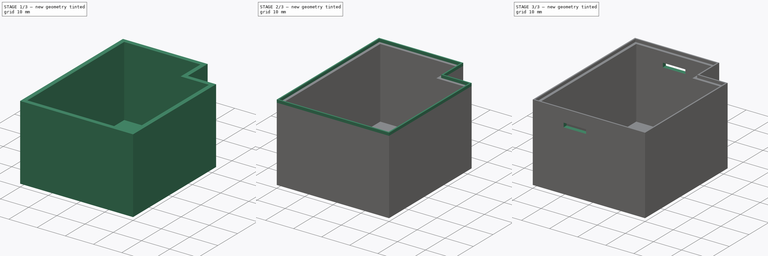
[diagram: build sequence overview — one tinted view per stage of 3, left to right]
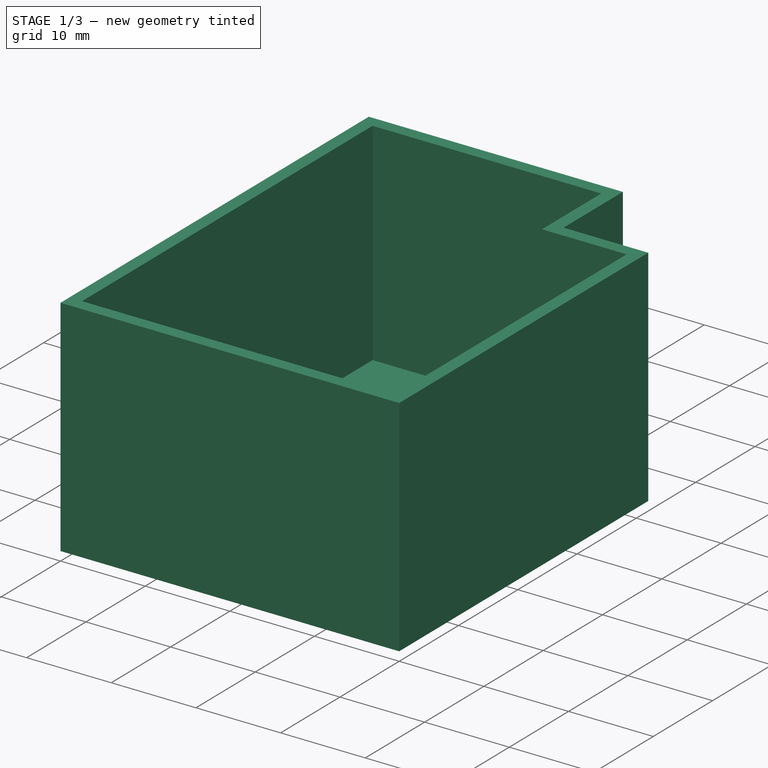
[diagram: stage 1 of 3 — iso view after this stage's code; geometry added in this stage tinted green]
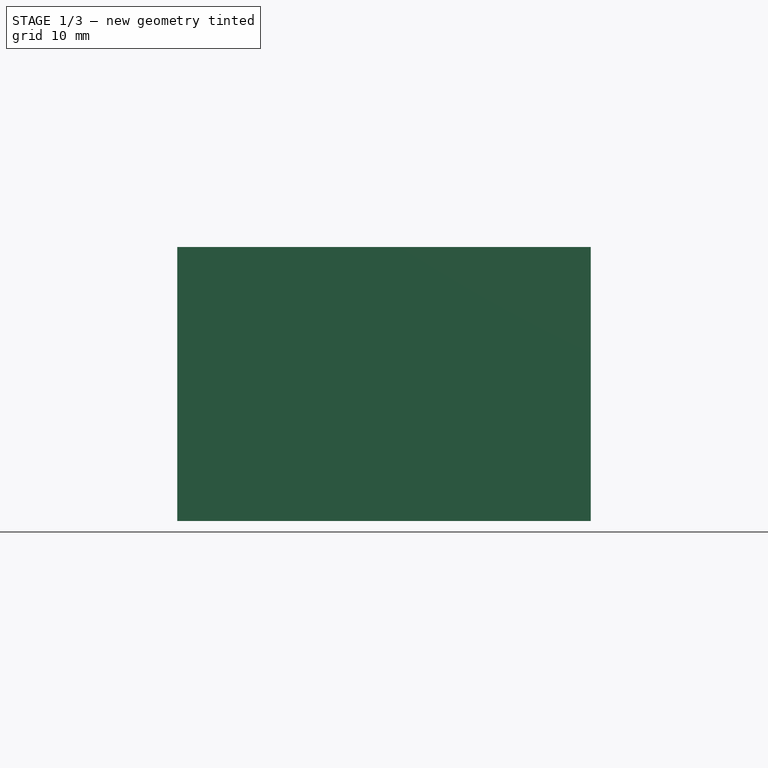
[diagram: stage 1 of 3 — front view after this stage's code; geometry added in this stage tinted green]
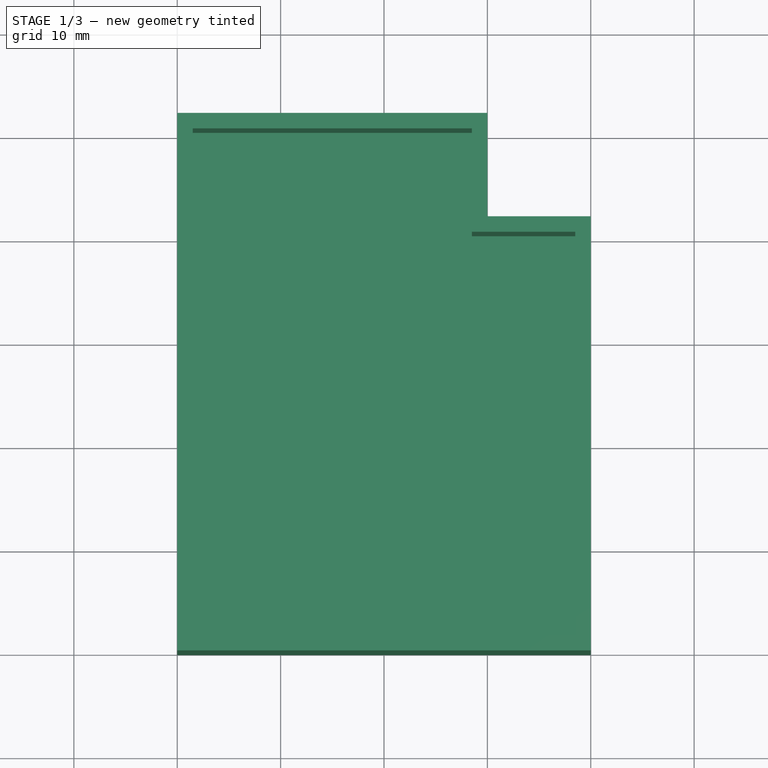
[diagram: stage 1 of 3 — top view after this stage's code; geometry added in this stage tinted green]
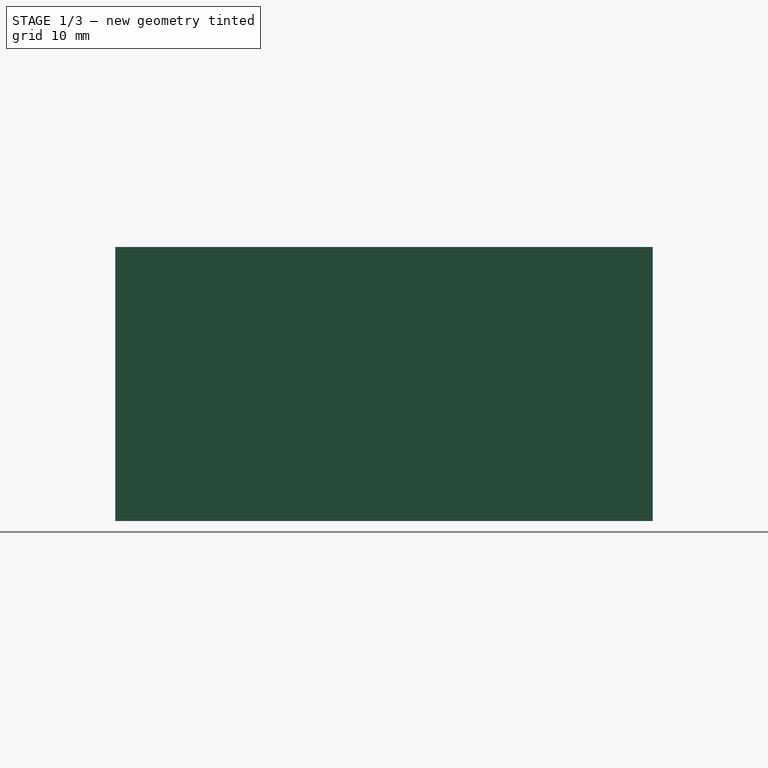
[diagram: stage 1 of 3 — right view after this stage's code; geometry added in this stage tinted green]
FCSTD DOCUMENT  (FreeCAD 0.19R24366 (Git))
Label: rad_dk_fixture_lid
License: All rights reserved
LicenseURL: http://en.wikipedia.org/wiki/All_rights_reserved
objects: Sketcher::SketchObject×4, PartDesign::Pad×4, PartDesign::Pocket×1, Part::Part2DObjectPython×1, PartDesign::Body×1, App::Part×1
note: 16 computed .brp shape members not serialized (recipe doc carries the construction recipe); baked Part::Feature solids carry a one-line shape summary decoded from their .brp

FEATURE [Sketcher::SketchObject] Sketch
  FullyConstrained = true
  MapMode = 5
  Support = -> [XY_Plane001]
  sketch-geometry (6):
    g0: LineSegment StartX=0 StartY=0 StartZ=0 EndX=0 EndY=52 EndZ=0
    g1: LineSegment StartX=40 StartY=0 StartZ=0 EndX=0 EndY=0 EndZ=0
    g2: LineSegment StartX=40 StartY=0 StartZ=0 EndX=40 EndY=42 EndZ=0
    g3: LineSegment StartX=40 StartY=42 StartZ=0 EndX=30 EndY=42 EndZ=0
    g4: LineSegment StartX=30 StartY=42 StartZ=0 EndX=30 EndY=52 EndZ=0
    g5: LineSegment StartX=30 StartY=52 StartZ=0 EndX=0 EndY=52 EndZ=0
  constraints (17):
    c: Vertical(g0)
    c: Coincident(g1,g0)
    c: Horizontal(g1)
    c: Coincident(g0,g-1)
    c: Vertical(g2)
    c: Coincident(g2,g1)
    c: Coincident(g3,g2)
    c: Horizontal(g3)
    c: Coincident(g4,g3)
    c: Vertical(g4)
    c: Coincident(g5,g4)
    c: Coincident(g5,g0)
    c: Horizontal(g5)
    c: DistanceY(g4,g4) = 10
    c: DistanceX(g3,g3) = 10
    c: DistanceY(g0,g0) = 52
    c: DistanceX(g1,g1) = 40
FEATURE [PartDesign::Pad] Pad
  Direction = (1,1,1)
  Length = 1.5
  Length2 = 100
  Profile = -> Sketch
  Type = 0
FEATURE [Sketcher::SketchObject] Sketch001
  ExternalGeometry = -> [Pad]
  FullyConstrained = true
  MapMode = 5
  Placement = pos=(0,0,1.5) rot=(0,0,1;0rad)
  Support = -> [Pad]
  sketch-geometry (12):
    g0: LineSegment StartX=0 StartY=52 StartZ=0 EndX=30 EndY=52 EndZ=0
    g1: LineSegment StartX=30 StartY=52 StartZ=0 EndX=30 EndY=42 EndZ=0
    g2: LineSegment StartX=30 StartY=42 StartZ=0 EndX=40 EndY=42 EndZ=0
    g3: LineSegment StartX=40 StartY=42 StartZ=0 EndX=40 EndY=0 EndZ=0
    g4: LineSegment StartX=40 StartY=0 StartZ=0 EndX=0 EndY=0 EndZ=0
    g5: LineSegment StartX=0 StartY=0 StartZ=0 EndX=0 EndY=52 EndZ=0
    g6: LineSegment StartX=1.5 StartY=50.5 StartZ=0 EndX=28.5 EndY=50.5 EndZ=0
    g7: LineSegment StartX=28.5 StartY=50.5 StartZ=0 EndX=28.5 EndY=40.5 EndZ=0
    g8: LineSegment StartX=28.5 StartY=40.5 StartZ=0 EndX=38.5 EndY=40.5 EndZ=0
    g9: LineSegment StartX=38.5 StartY=40.5 StartZ=0 EndX=38.5 EndY=1.5 EndZ=0
    g10: LineSegment StartX=38.5 StartY=1.5 StartZ=0 EndX=1.5 EndY=1.5 EndZ=0
    g11: LineSegment StartX=1.5 StartY=1.5 StartZ=0 EndX=1.5 EndY=50.5 EndZ=0
  constraints (32):
    c: Horizontal(g0)
    c: Coincident(g1,g0)
    c: Vertical(g1)
    c: Coincident(g2,g1)
    c: Horizontal(g2)
    c: Coincident(g3,g2)
    c: Coincident(g4,g3)
    c: Coincident(g5,g4)
    c: Coincident(g5,g0)
    c: Vertical(g5)
    c: Horizontal(g6)
    c: Coincident(g7,g6)
    c: Coincident(g8,g7)
    c: Horizontal(g8)
    c: Vertical(g7)
    c: Coincident(g9,g8)
    c: Vertical(g9)
    c: Coincident(g10,g9)
    c: Horizontal(g10)
    c: Coincident(g11,g10)
    c: Coincident(g11,g6)
    c: Vertical(g11)
    c: Distance(g6,g0) = 1.5
    c: Distance(g6,g5) = 1.5
    c: Distance(g6,g1) = 1.5
    c: Distance(g7,g2) = 1.5
    c: Distance(g8,g3) = 1.5
    c: Distance(g9,g4) = 1.5
    c: Coincident(g4,g-1)
    c: Coincident(g3,g-6)
    c: Coincident(g2,g-7)
    c: Coincident(g0,g-8)
FEATURE [PartDesign::Pad] Pad001
  BaseFeature = -> Pad
  Direction = (1,1,1)
  Length = 25
  Length2 = 100
  Profile = -> Sketch001
  Type = 0
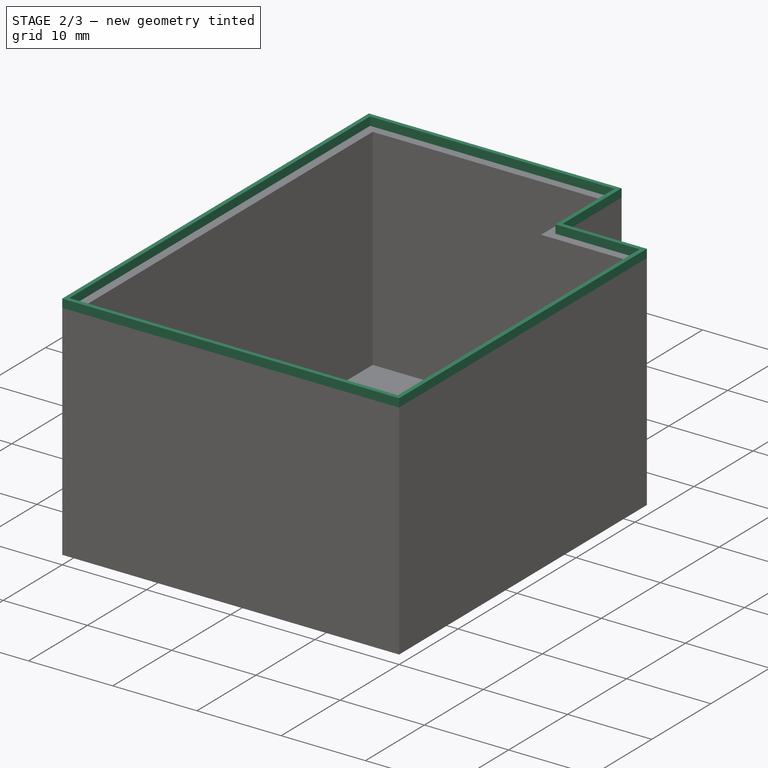
[diagram: stage 2 of 3 — iso view after this stage's code; geometry added in this stage tinted green]
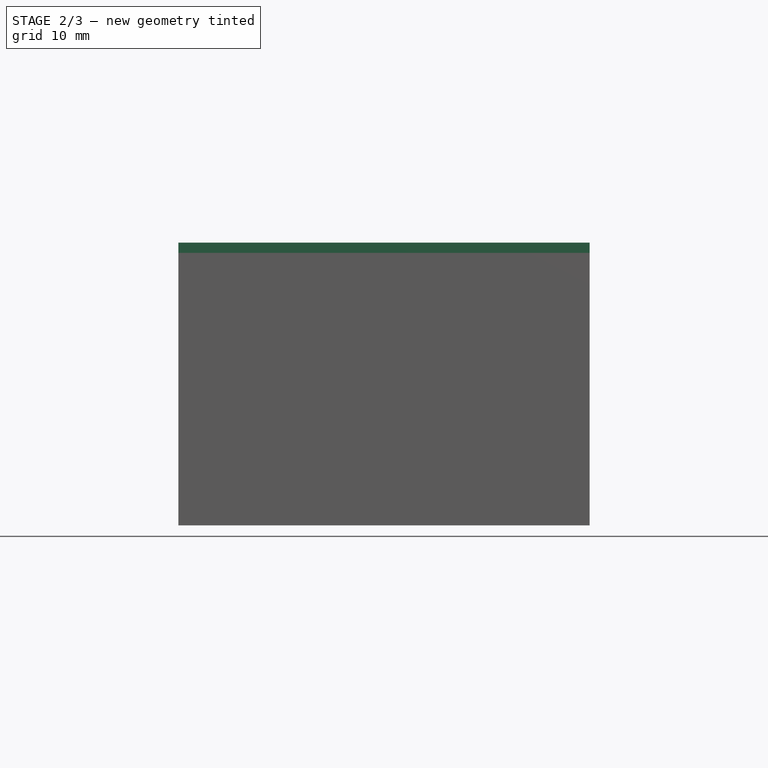
[diagram: stage 2 of 3 — front view after this stage's code; geometry added in this stage tinted green]
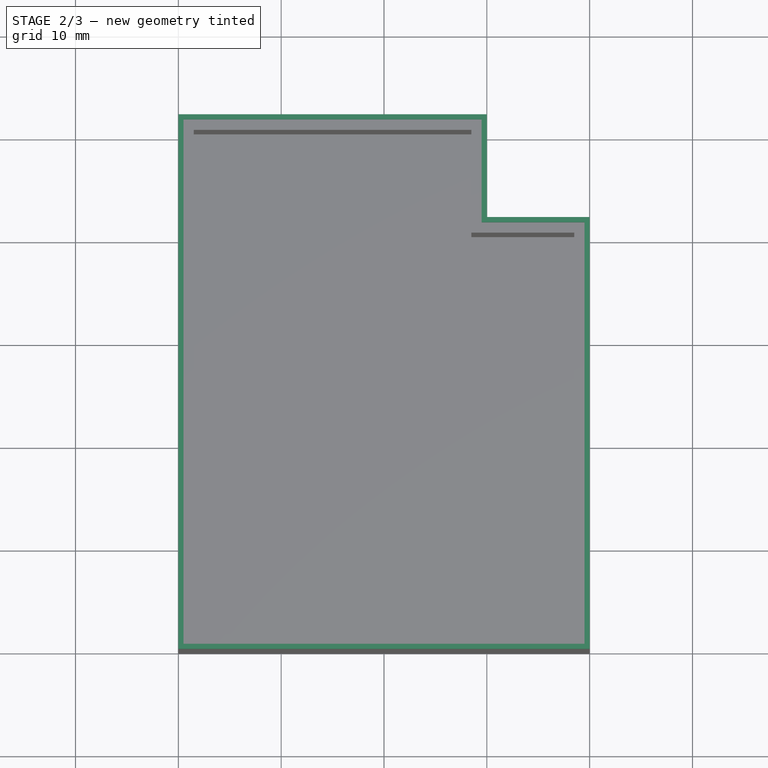
[diagram: stage 2 of 3 — top view after this stage's code; geometry added in this stage tinted green]
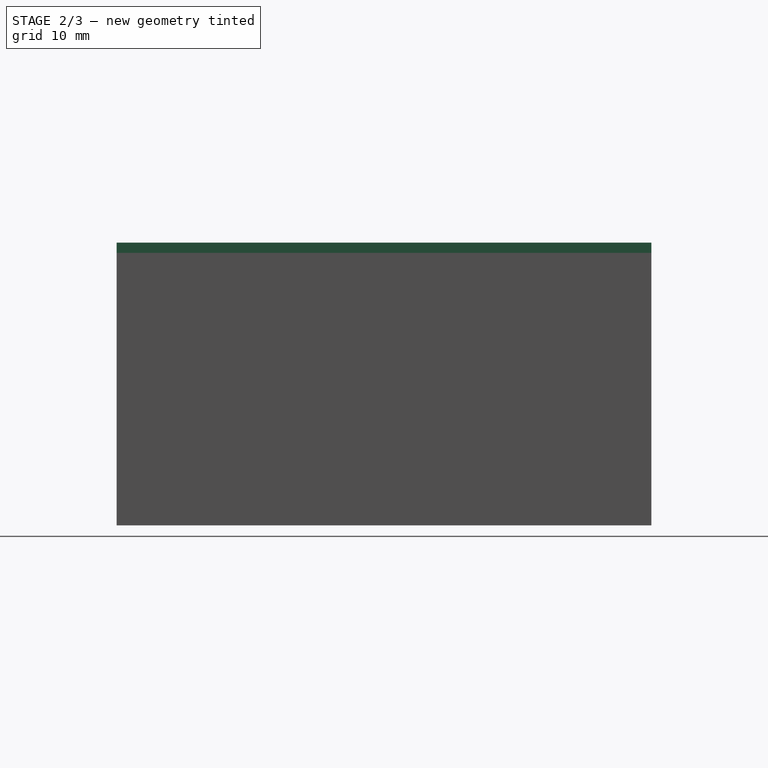
[diagram: stage 2 of 3 — right view after this stage's code; geometry added in this stage tinted green]
FEATURE [Sketcher::SketchObject] Sketch002
  ExternalGeometry = -> [Pad001]
  FullyConstrained = true
  MapMode = 5
  Placement = pos=(0,0,26.5) rot=(0,0,1;0rad)
  Support = -> [Pad001]
  sketch-geometry (12):
    g0: LineSegment StartX=0 StartY=52 StartZ=0 EndX=30 EndY=52 EndZ=0
    g1: LineSegment StartX=30 StartY=52 StartZ=0 EndX=30 EndY=42 EndZ=0
    g2: LineSegment StartX=30 StartY=42 StartZ=0 EndX=40 EndY=42 EndZ=0
    g3: LineSegment StartX=40 StartY=42 StartZ=0 EndX=40 EndY=0 EndZ=0
    g4: LineSegment StartX=40 StartY=0 StartZ=0 EndX=0 EndY=0 EndZ=0
    g5: LineSegment StartX=0 StartY=0 StartZ=0 EndX=0 EndY=52 EndZ=0
    g6: LineSegment StartX=0.5 StartY=51.5 StartZ=0 EndX=29.5 EndY=51.5 EndZ=0
    g7: LineSegment StartX=29.5 StartY=51.5 StartZ=0 EndX=29.5 EndY=41.5 EndZ=0
    g8: LineSegment StartX=29.5 StartY=41.5 StartZ=0 EndX=39.5 EndY=41.5 EndZ=0
    g9: LineSegment StartX=39.5 StartY=41.5 StartZ=0 EndX=39.5 EndY=0.5 EndZ=0
    g10: LineSegment StartX=39.5 StartY=0.5 StartZ=0 EndX=0.5 EndY=0.5 EndZ=0
    g11: LineSegment StartX=0.5 StartY=0.5 StartZ=0 EndX=0.5 EndY=51.5 EndZ=0
  constraints (32):
    c: Horizontal(g0)
    c: Coincident(g1,g0)
    c: Vertical(g1)
    c: Horizontal(g2)
    c: Coincident(g3,g2)
    c: Coincident(g4,g3)
    c: Coincident(g5,g4)
    c: Coincident(g5,g0)
    c: Vertical(g5)
    c: Horizontal(g6)
    c: Coincident(g7,g6)
    c: Vertical(g7)
    c: Coincident(g8,g7)
    c: Horizontal(g8)
    c: Coincident(g9,g8)
    c: Vertical(g9)
    c: Coincident(g10,g9)
    c: Horizontal(g10)
    c: Coincident(g11,g10)
    c: Coincident(g11,g6)
    c: Vertical(g11)
    c: Distance(g6,g0) = 0.5
    c: Distance(g6,g5) = 0.5
    c: Distance(g6,g1) = 0.5
    c: Coincident(g2,g1)
    c: Distance(g7,g2) = 0.5
    c: Distance(g8,g3) = 0.5
    c: Distance(g9,g4) = 0.5
    c: Coincident(g4,g-1)
    c: Coincident(g3,g-7)
    c: Coincident(g2,g-6)
    c: Coincident(g-4,g0)
FEATURE [PartDesign::Pad] Pad002
  BaseFeature = -> Pad001
  Direction = (1,1,1)
  Length = 1
  Length2 = 100
  Profile = -> Sketch002
  Type = 0
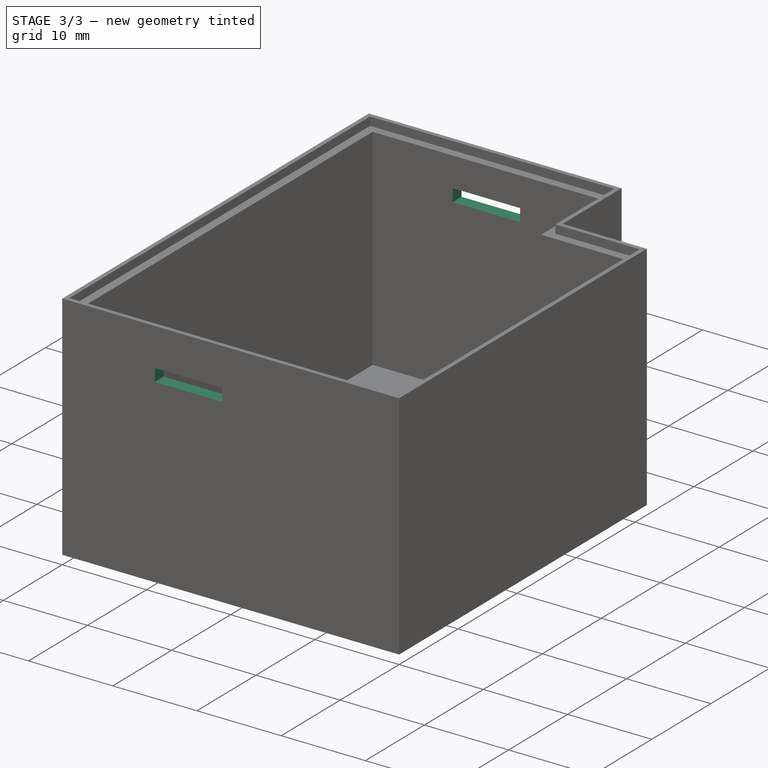
[diagram: stage 3 of 3 — iso view after this stage's code; geometry added in this stage tinted green]
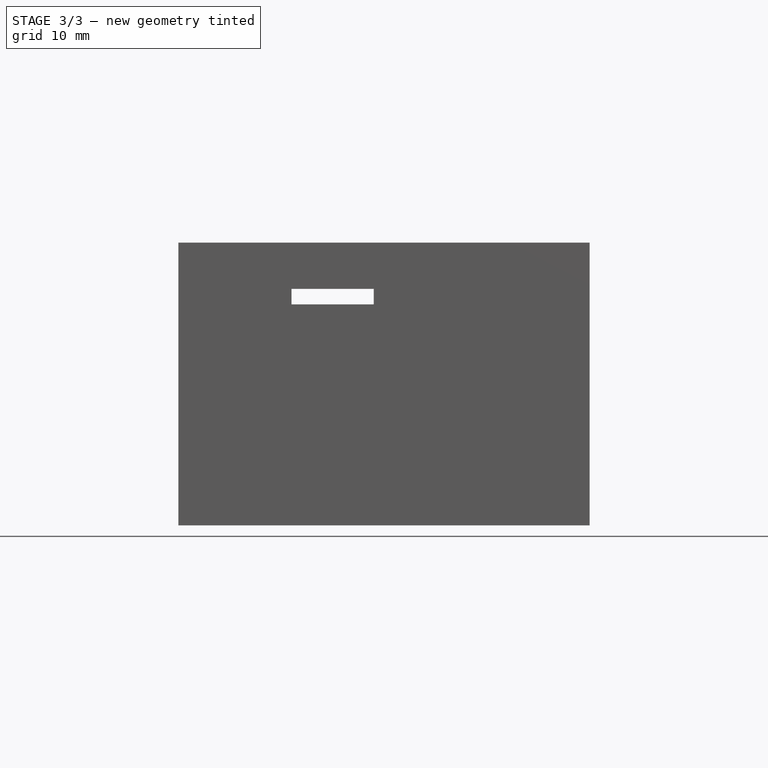
[diagram: stage 3 of 3 — front view after this stage's code; geometry added in this stage tinted green]
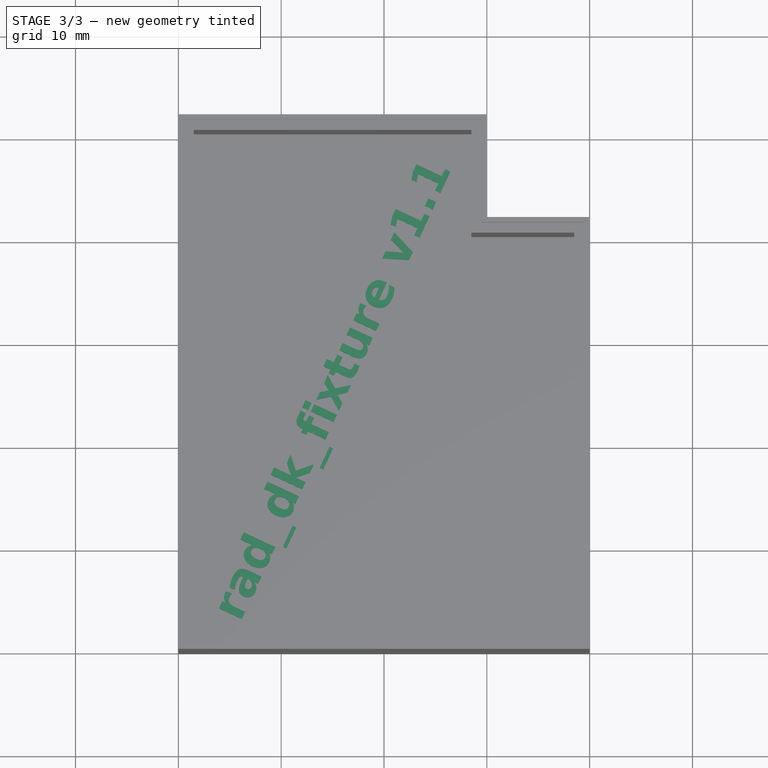
[diagram: stage 3 of 3 — top view after this stage's code; geometry added in this stage tinted green]
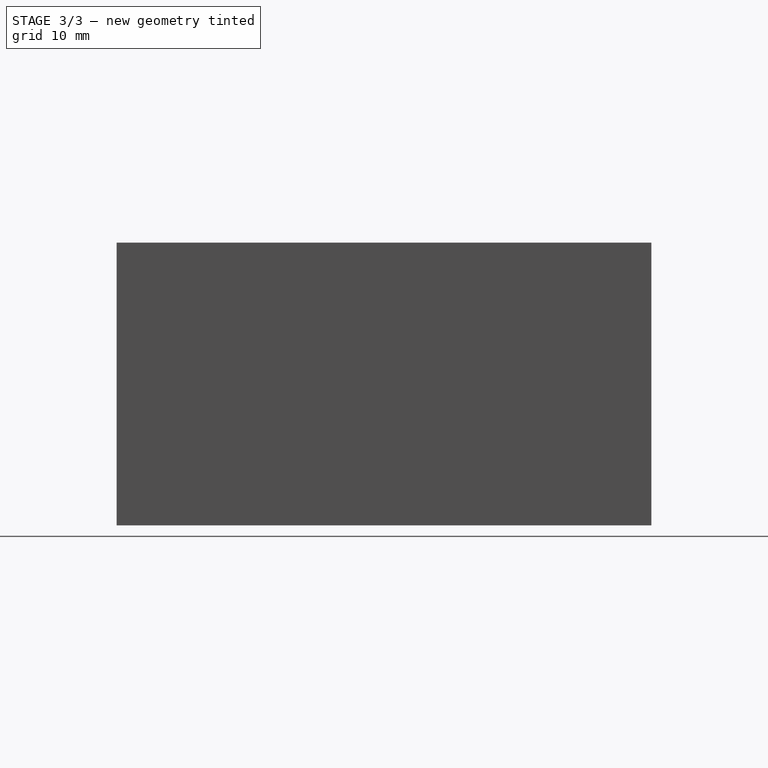
[diagram: stage 3 of 3 — right view after this stage's code; geometry added in this stage tinted green]
FEATURE [Sketcher::SketchObject] Sketch003
  ExternalGeometry = -> [Pad002]
  FullyConstrained = true
  MapMode = 5
  Placement = pos=(0,52,0) rot=(0,0.707107,0.707107;3.14159rad)
  Support = -> [Pad002]
  sketch-geometry (4):
    g0: LineSegment StartX=-19 StartY=23 StartZ=0 EndX=-11 EndY=23 EndZ=0
    g1: LineSegment StartX=-11 StartY=23 StartZ=0 EndX=-11 EndY=21.5 EndZ=0
    g2: LineSegment StartX=-11 StartY=21.5 StartZ=0 EndX=-19 EndY=21.5 EndZ=0
    g3: LineSegment StartX=-19 StartY=21.5 StartZ=0 EndX=-19 EndY=23 EndZ=0
  constraints (12):
    c: Coincident(g0,g1)
    c: Coincident(g1,g2)
    c: Coincident(g2,g3)
    c: Coincident(g3,g0)
    c: Horizontal(g0)
    c: Horizontal(g2)
    c: Vertical(g1)
    c: Vertical(g3)
    c: DistanceX(g-2,g1) = -11
    c: DistanceY(g1,g1) = 1.5
    c: Distance(g2,g-3) = 6
    c: DistanceX(g2,g2) = 8
FEATURE [PartDesign::Pocket] Pocket
  BaseFeature = -> Pad002
  Length = 5
  Length2 = 100
  Profile = -> Sketch003
  Type = 1
FEATURE [Part::Part2DObjectPython] ShapeString  # Draft 2D object (typed FeaturePython)
  AttachmentOffset = pos=(6,3,0) rot=(0,0,1;1.13446rad)
  FontFile = <path>
  MapMode = 5
  Placement = pos=(6,3,1.5) rot=(0,0,1;1.13446rad)
  Size = 3.5
  String = rad_dk_fixture v1.1
  Support = -> [Pocket]
  Tracking = 0
FEATURE [PartDesign::Pad] Pad003
  BaseFeature = -> Pocket
  Direction = (1,1,1)
  Length = 0.5
  Length2 = 100
  Profile = -> ShapeString
  Type = 0
FEATURE [PartDesign::Body] Body
  Group = -> [Sketch,Pad,Sketch001,Pad001,Sketch002,Pad002,Sketch003,Pocket,ShapeString,Pad003]
  Origin = -> Origin001
  Tip = -> Pad003
FEATURE [App::Part] Part
  Group = -> [Body]
  Origin = -> Origin
note: 1 file-system path scrubbed to <path> (originals preserved in the JSON sidecar)
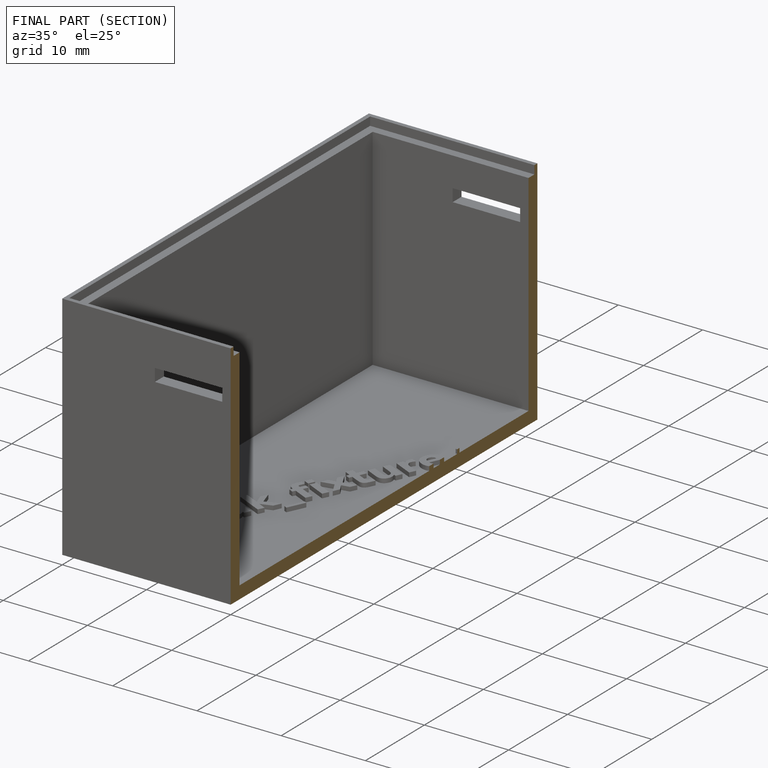
[diagram: finished part — half-section view (interior)]
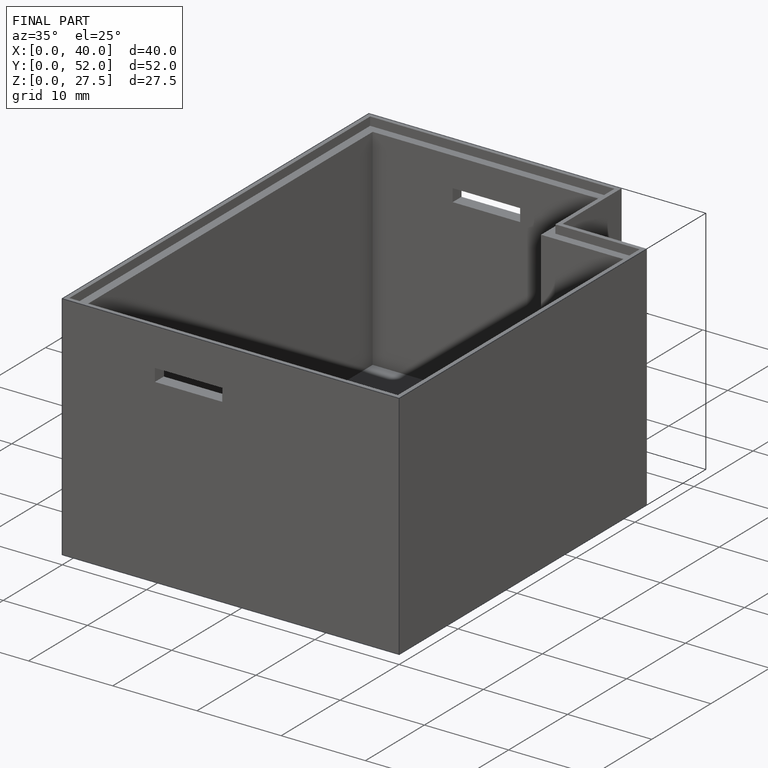
[diagram: finished part — iso view with bounding-box wireframe]
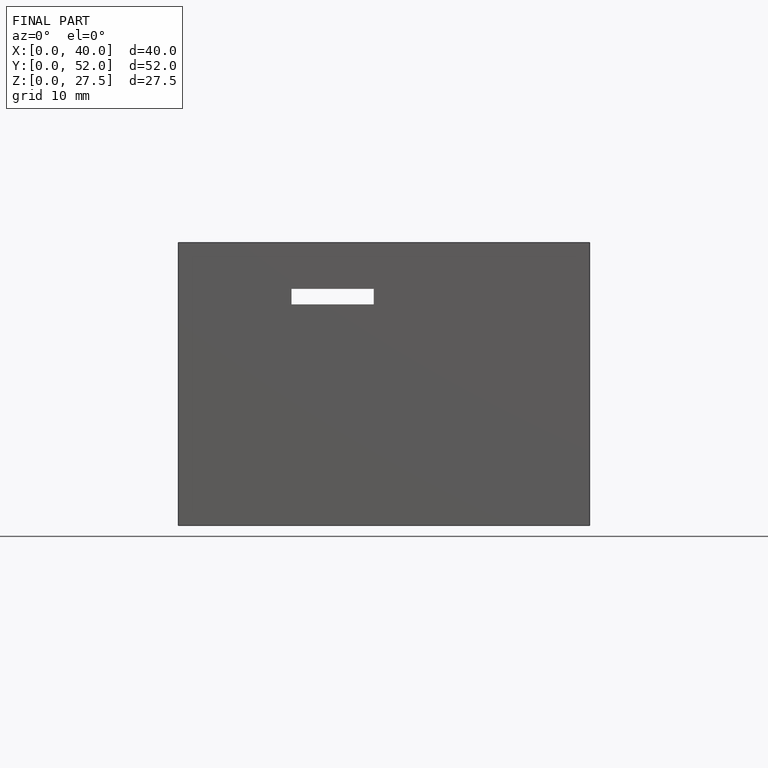
[diagram: finished part — front view with bounding-box wireframe]
